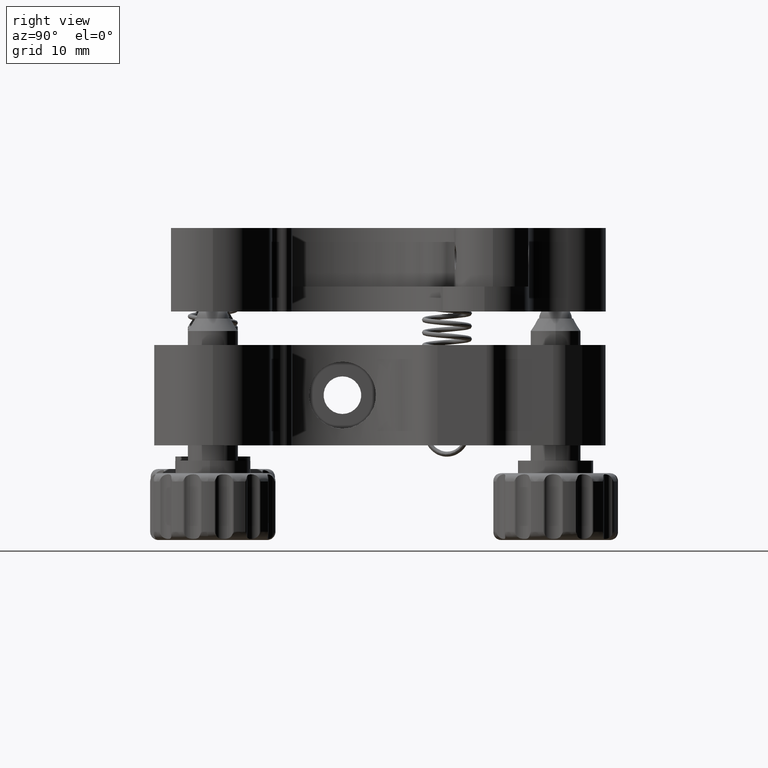
[diagram: clean part render]
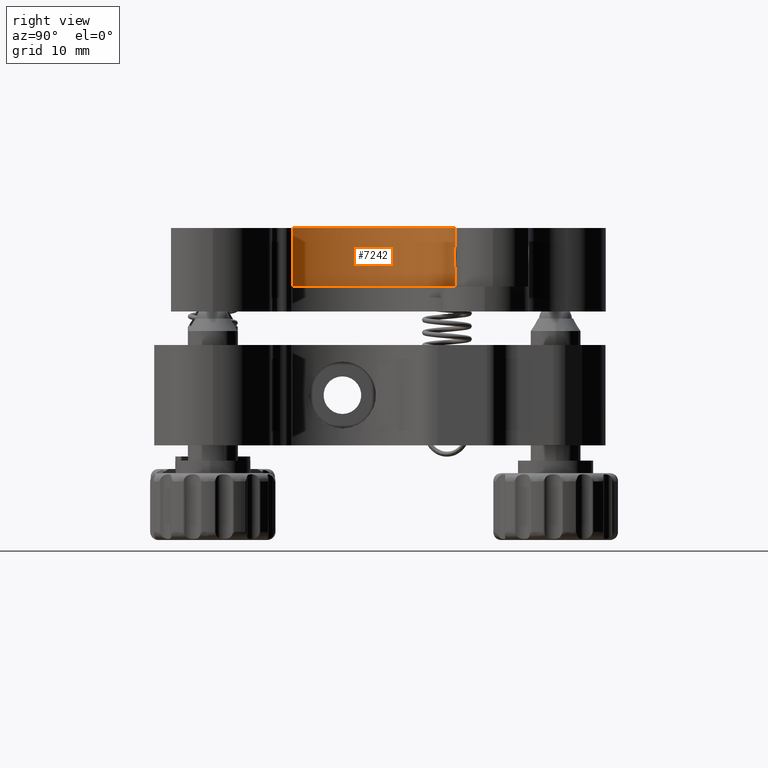
[diagram: same view with one face highlighted and labeled with its STEP entity id]
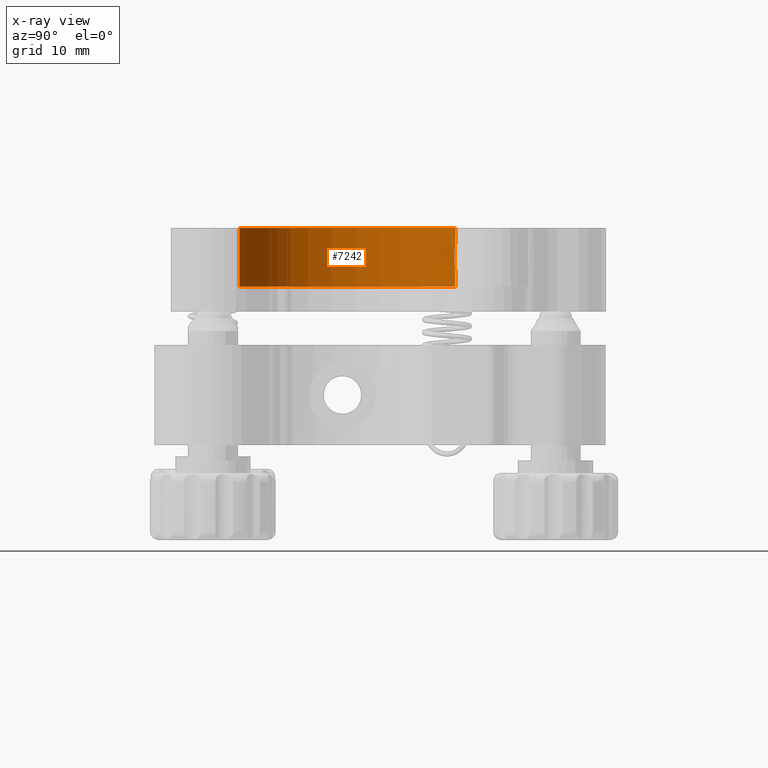
[diagram: x-ray of the same camera — body ghosted, the highlighted face saturated]
A machine part, right view. The second image highlights one B-rep face of the part: STEP entity #7242.
The next image is the same camera in x-ray: the body ghosted, the highlighted face saturated — about 25% of this face is hidden behind the body in this view.
In plain terms, the highlighted cylindrical surface (partial cylindrical patch) has radius 13.5 mm, axis along (-0, -0, 1).
Its self-contained STEP definition (entity closure, byte-faithful):
#89 = CARTESIAN_POINT ( 'NONE',  ( -0.8317980787668729500, 13.47612584276839300, 9.058616940184645500 ) ) ;
#159 = DIRECTION ( 'NONE',  ( -0.0000000000000000000, -0.0000000000000000000, 1.000000000000000000 ) ) ;
#329 = ORIENTED_EDGE ( 'NONE', *, *, #11703, .T. ) ;
#681 = CARTESIAN_POINT ( 'NONE',  ( -5.663924280384614500E-005, 0.0002844505434125637000, 14.00000000000000200 ) ) ;
#750 = DIRECTION ( 'NONE',  ( 1.000000000000000000, 0.0000000000000000000, 0.0000000000000000000 ) ) ;
#1149 = VECTOR ( 'NONE', #18403, 1000.000000000000000 ) ;
#1193 = VERTEX_POINT ( 'NONE', #15037 ) ;
#1530 = CARTESIAN_POINT ( 'NONE',  ( -5.461053362103986500, -12.34586939561043400, 7.000000000000001800 ) ) ;
#1584 = CARTESIAN_POINT ( 'NONE',  ( -1.650090222383083600, 13.39906757348632400, 10.39282039924076000 ) ) ;
#1591 = CARTESIAN_POINT ( 'NONE',  ( 0.3749433607571968100, 13.49507511212834900, 8.893178603577863900 ) ) ;
#1735 = CARTESIAN_POINT ( 'NONE',  ( -1.639341889510009100, 13.40040369105235600, 10.28342957662271900 ) ) ;
#1855 = ORIENTED_EDGE ( 'NONE', *, *, #9004, .T. ) ;
#2809 = CARTESIAN_POINT ( 'NONE',  ( -1.606611012641718600, 13.40460641854357200, 10.93324223105024700 ) ) ;
#3099 = CARTESIAN_POINT ( 'NONE',  ( 0.1258452610472107200, 13.50028445054341300, 8.850000000000008500 ) ) ;
#3167 = CARTESIAN_POINT ( 'NONE',  ( -1.649989231134444400, 13.39908001010083000, 10.71590648774999400 ) ) ;
#3370 = CARTESIAN_POINT ( 'NONE',  ( -1.565936055859072500, 13.40922740780388600, 9.968779459613148900 ) ) ;
#3712 = ORIENTED_EDGE ( 'NONE', *, *, #9272, .F. ) ;
#4609 = CARTESIAN_POINT ( 'NONE',  ( 0.3749433607571968100, 13.49507511212834900, 7.000000000000001800 ) ) ;
#4620 = DIRECTION ( 'NONE',  ( -0.0000000000000000000, -0.0000000000000000000, 1.000000000000000000 ) ) ;
#4698 = LINE ( 'NONE', #16062, #6496 ) ;
#5726 = EDGE_CURVE ( 'NONE', #20633, #9748, #13692, .T. ) ;
#5882 = B_SPLINE_CURVE_WITH_KNOTS ( 'NONE', 3,
 ( #13082, #6441, #12590, #9725, #21214, #89, #12946, #21147, #6025, #11377, #11517, #3370, #14803, #1735, #1584, #3167, #2809, #16403, #17977, #19482, #6590, #6093, #15832, #17493, #20795, #13010 ),
 .UNSPECIFIED., .F., .F.,
 ( 4, 2, 2, 2, 2, 2, 2, 2, 2, 2, 2, 2, 4 ),
 ( 0.0003769768952126477200, 0.0006996984157637969900, 0.001022419936314946300, 0.001667862977417246700, 0.001990584497968398800, 0.002313306018519551100, 0.002636027539070703000, 0.002958749059621855300, 0.003604192100724165100, 0.004249635141826475800, 0.004572356662377631600, 0.004895078182928789100, 0.005540521224031102300 ),
 .UNSPECIFIED. ) ;
#6025 = CARTESIAN_POINT ( 'NONE',  ( -1.312146880191156400, 13.43650499479755000, 9.493785143038341100 ) ) ;
#6093 = CARTESIAN_POINT ( 'NONE',  ( -0.8269751922408559200, 13.47523388516568800, 11.93188791994400700 ) ) ;
#6296 = CARTESIAN_POINT ( 'NONE',  ( 0.3749433607571964800, 13.49507511212834900, 12.10682139642213800 ) ) ;
#6441 = CARTESIAN_POINT ( 'NONE',  ( -0.1078384508547496500, 13.50028445054341800, 8.850000000000006800 ) ) ;
#6496 = VECTOR ( 'NONE', #13021, 1000.000000000000000 ) ;
#6590 = CARTESIAN_POINT ( 'NONE',  ( -1.006077726902058900, 13.46304709905298600, 11.81225716982566000 ) ) ;
#6634 = ORIENTED_EDGE ( 'NONE', *, *, #20605, .F. ) ;
#6640 = ORIENTED_EDGE ( 'NONE', *, *, #8638, .T. ) ;
#7242 = ADVANCED_FACE ( 'NONE', ( #12121 ), #20888, .F. ) ;
#7349 = AXIS2_PLACEMENT_3D ( 'NONE', #17541, #10999, #14210 ) ;
#7699 = VECTOR ( 'NONE', #4620, 1000.000000000000000 ) ;
#7780 = CARTESIAN_POINT ( 'NONE',  ( 0.3749433607571968100, 13.49507511212834900, 7.000000000000001800 ) ) ;
#8027 = CARTESIAN_POINT ( 'NONE',  ( -5.663924279323574300E-005, 13.50028445054341300, 8.850000000000008500 ) ) ;
#8638 = EDGE_CURVE ( 'NONE', #1193, #20897, #16519, .T. ) ;
#9004 = EDGE_CURVE ( 'NONE', #20159, #17879, #4698, .T. ) ;
#9148 = CARTESIAN_POINT ( 'NONE',  ( -5.663924279343780500E-005, 13.50028445054341300, 12.14999999999999500 ) ) ;
#9272 = EDGE_CURVE ( 'NONE', #20366, #20897, #19311, .T. ) ;
#9463 = LINE ( 'NONE', #7780, #7699 ) ;
#9725 = CARTESIAN_POINT ( 'NONE',  ( -0.4288636987441669700, 13.49388739354041400, 8.903046673061298900 ) ) ;
#9748 = VERTEX_POINT ( 'NONE', #6296 ) ;
#9835 = CARTESIAN_POINT ( 'NONE',  ( -5.461053362103986500, -12.34586939561043400, 14.00000000000000200 ) ) ;
#10044 = CARTESIAN_POINT ( 'NONE',  ( -5.663924279323574300E-005, 13.50028445054341300, 8.850000000000008500 ) ) ;
#10213 = CARTESIAN_POINT ( 'NONE',  ( -5.461053362103986500, -12.34586939561043400, 7.000000000000001800 ) ) ;
#10637 = EDGE_CURVE ( 'NONE', #19625, #20633, #5882, .T. ) ;
#10999 = DIRECTION ( 'NONE',  ( 0.0000000000000000000, 0.0000000000000000000, 1.000000000000000000 ) ) ;
#11064 = CARTESIAN_POINT ( 'NONE',  ( -5.663924279343780500E-005, 13.50028445054341300, 12.14999999999999500 ) ) ;
#11377 = CARTESIAN_POINT ( 'NONE',  ( -1.431580670490529400, 13.42430554193734500, 9.672480763533231500 ) ) ;
#11517 = CARTESIAN_POINT ( 'NONE',  ( -1.483291739690255900, 13.41862053275750300, 9.769118855960808600 ) ) ;
#11703 = EDGE_CURVE ( 'NONE', #9748, #1193, #9463, .T. ) ;
#12121 = FACE_OUTER_BOUND ( 'NONE', #12800, .T. ) ;
#12283 = B_SPLINE_CURVE_WITH_KNOTS ( 'NONE', 3,
 ( #1591, #16195, #3099, #8027 ),
 .UNSPECIFIED., .F., .F.,
 ( 4, 4 ),
 ( 0.0000000000000000000, 0.0003769768952126477200 ),
 .UNSPECIFIED. ) ;
#12590 = CARTESIAN_POINT ( 'NONE',  ( -0.2173031410472600100, 13.49895104524783900, 8.860811365293020700 ) ) ;
#12800 = EDGE_LOOP ( 'NONE', ( #1855, #18897, #17317, #15684, #329, #6640, #3712, #6634 ) ) ;
#12946 = CARTESIAN_POINT ( 'NONE',  ( -1.013416362049583700, 13.46308183517967200, 9.179811207677461800 ) ) ;
#13010 = CARTESIAN_POINT ( 'NONE',  ( -5.663924279343780500E-005, 13.50028445054341300, 12.14999999999999500 ) ) ;
#13021 = DIRECTION ( 'NONE',  ( -0.0000000000000000000, -0.0000000000000000000, 1.000000000000000000 ) ) ;
#13082 = CARTESIAN_POINT ( 'NONE',  ( -5.663924279323574300E-005, 13.50028445054341300, 8.850000000000008500 ) ) ;
#13281 = DIRECTION ( 'NONE',  ( 1.000000000000000000, 0.0000000000000000000, 0.0000000000000000000 ) ) ;
#13692 = B_SPLINE_CURVE_WITH_KNOTS ( 'NONE', 3,
 ( #11064, #19312, #19104, #17537 ),
 .UNSPECIFIED., .F., .F.,
 ( 4, 4 ),
 ( 0.005540521224031101500, 0.005915322390418488100 ),
 .UNSPECIFIED. ) ;
#13809 = EDGE_CURVE ( 'NONE', #17879, #19625, #12283, .T. ) ;
#14210 = DIRECTION ( 'NONE',  ( 1.000000000000000000, 0.0000000000000000000, 0.0000000000000000000 ) ) ;
#14803 = CARTESIAN_POINT ( 'NONE',  ( -1.597137605969432200, 13.40549926334372800, 10.07164119508878200 ) ) ;
#15037 = CARTESIAN_POINT ( 'NONE',  ( 0.3749433607571968100, 13.49507511212834900, 14.00000000000000200 ) ) ;
#15460 = DIRECTION ( 'NONE',  ( 0.0000000000000000000, 0.0000000000000000000, 1.000000000000000000 ) ) ;
#15684 = ORIENTED_EDGE ( 'NONE', *, *, #5726, .T. ) ;
#15832 = CARTESIAN_POINT ( 'NONE',  ( -0.7322526886242298700, 13.48078550697921200, 11.98260145622725900 ) ) ;
#16062 = CARTESIAN_POINT ( 'NONE',  ( 0.3749433607571968100, 13.49507511212834900, 7.000000000000001800 ) ) ;
#16195 = CARTESIAN_POINT ( 'NONE',  ( 0.2508558137176525300, 13.49852331901845700, 8.864219050111971800 ) ) ;
#16403 = CARTESIAN_POINT ( 'NONE',  ( -1.441967508605879000, 13.42331530878520600, 11.33042689640040200 ) ) ;
#16519 = CIRCLE ( 'NONE', #20162, 13.50000000000000000 ) ;
#17317 = ORIENTED_EDGE ( 'NONE', *, *, #10637, .T. ) ;
#17493 = CARTESIAN_POINT ( 'NONE',  ( -0.4322854912942583600, 13.49484844382009800, 12.10703165818292600 ) ) ;
#17537 = CARTESIAN_POINT ( 'NONE',  ( 0.3749433607571964800, 13.49507511212834900, 12.10682139642213800 ) ) ;
#17541 = CARTESIAN_POINT ( 'NONE',  ( -5.663924280384614500E-005, 0.0002844505434125637000, 7.000000000000001800 ) ) ;
#17879 = VERTEX_POINT ( 'NONE', #20902 ) ;
#17977 = CARTESIAN_POINT ( 'NONE',  ( -1.319171279440518600, 13.43655111159001000, 11.51427660085362200 ) ) ;
#18114 = CARTESIAN_POINT ( 'NONE',  ( -5.663924280384614500E-005, 0.0002844505434125637000, 7.000000000000001800 ) ) ;
#18403 = DIRECTION ( 'NONE',  ( -0.0000000000000000000, -0.0000000000000000000, 1.000000000000000000 ) ) ;
#18897 = ORIENTED_EDGE ( 'NONE', *, *, #13809, .T. ) ;
#19104 = CARTESIAN_POINT ( 'NONE',  ( 0.2515701753655084100, 13.49850346797929200, 12.13561423215665200 ) ) ;
#19311 = LINE ( 'NONE', #10213, #1149 ) ;
#19312 = CARTESIAN_POINT ( 'NONE',  ( 0.1265699829945266300, 13.50028445054341300, 12.14999999999999500 ) ) ;
#19482 = CARTESIAN_POINT ( 'NONE',  ( -1.090939826721703600, 13.45635390549421100, 11.74259968836775200 ) ) ;
#19625 = VERTEX_POINT ( 'NONE', #10044 ) ;
#20159 = VERTEX_POINT ( 'NONE', #4609 ) ;
#20162 = AXIS2_PLACEMENT_3D ( 'NONE', #681, #15460, #750 ) ;
#20281 = AXIS2_PLACEMENT_3D ( 'NONE', #18114, #159, #13281 ) ;
#20366 = VERTEX_POINT ( 'NONE', #1530 ) ;
#20605 = EDGE_CURVE ( 'NONE', #20159, #20366, #20647, .T. ) ;
#20633 = VERTEX_POINT ( 'NONE', #9148 ) ;
#20647 = CIRCLE ( 'NONE', #7349, 13.50000000000000000 ) ;
#20795 = CARTESIAN_POINT ( 'NONE',  ( -0.2181196536382553300, 13.50028445054341100, 12.14999999999999500 ) ) ;
#20888 = CYLINDRICAL_SURFACE ( 'NONE', #20281, 13.50000000000000000 ) ;
#20897 = VERTEX_POINT ( 'NONE', #9835 ) ;
#20902 = CARTESIAN_POINT ( 'NONE',  ( 0.3749433607571968100, 13.49507511212834900, 8.893178603577863900 ) ) ;
#21147 = CARTESIAN_POINT ( 'NONE',  ( -1.244013670484267500, 13.44307150313480800, 9.410552893335273300 ) ) ;
#21214 = CARTESIAN_POINT ( 'NONE',  ( -0.5317708768948850000, 13.49018080789673800, 8.934273425430193400 ) ) ;